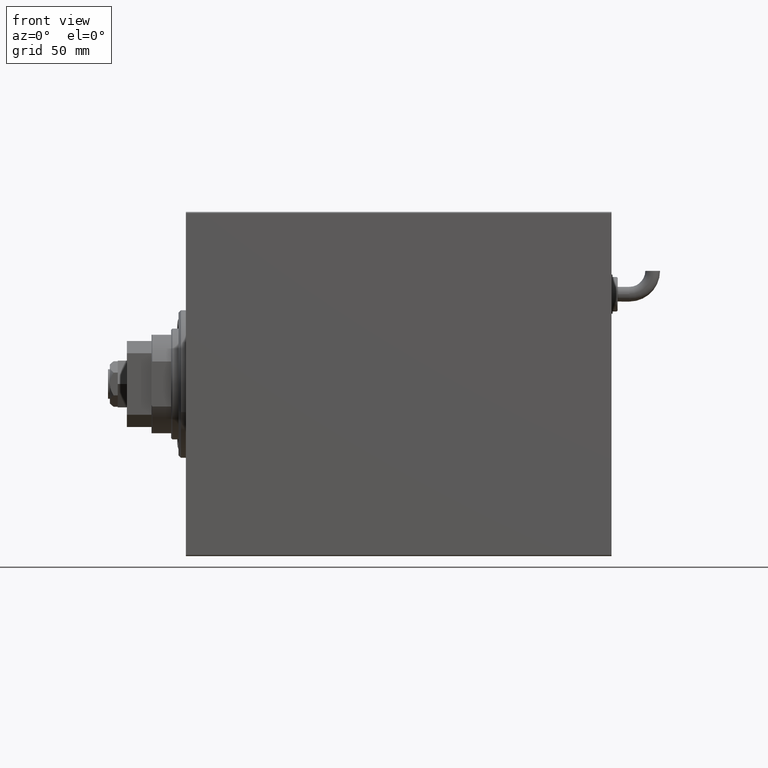
[diagram: clean part render]
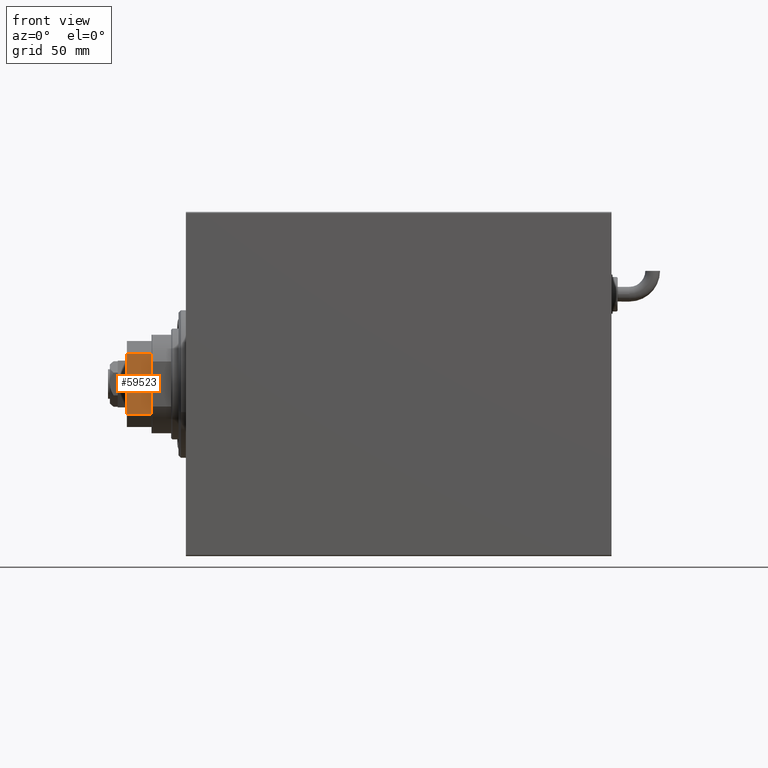
[diagram: same view with one face highlighted and labeled with its STEP entity id]
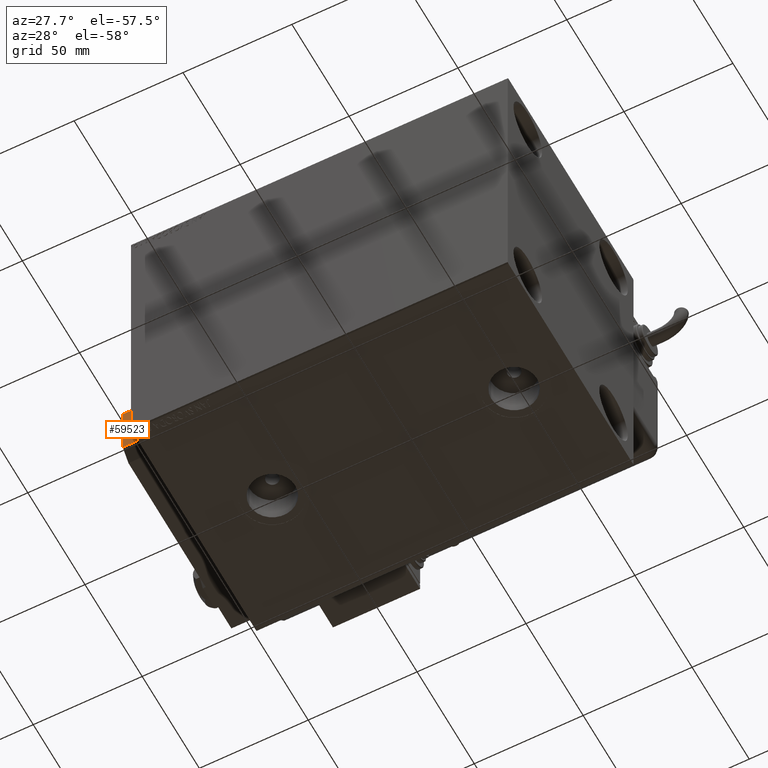
[diagram: same view with one face highlighted and labeled with its STEP entity id]
A machine part, front view. The second image highlights one B-rep face of the part: STEP entity #59523.
A second angle (auxiliary view) of the same face is appended — the face is thin or edge-on in the first view.
In plain terms, the highlighted planar face has unit normal (0, 1, 0).
Its self-contained STEP definition (entity closure, byte-faithful):
#577 = EDGE_CURVE ( 'NONE', #17290, #55496, #48969, .T. ) ;
#1047 = EDGE_CURVE ( 'NONE', #16594, #34367, #23409, .T. ) ;
#8078 = VECTOR ( 'NONE', #47781, 1000.000000000000000 ) ;
#11742 = CARTESIAN_POINT ( 'NONE',  ( -12.50000000000000711, 9.629649721936179265E-32, 10.00000000000000000 ) ) ;
#15949 = ORIENTED_EDGE ( 'NONE', *, *, #577, .F. ) ;
#16594 = VERTEX_POINT ( 'NONE', #38016 ) ;
#16902 = EDGE_CURVE ( 'NONE', #17290, #16594, #33528, .T. ) ;
#17290 = VERTEX_POINT ( 'NONE', #32786 ) ;
#17348 = EDGE_LOOP ( 'NONE', ( #15949, #24563, #32271, #21872 ) ) ;
#18670 = CARTESIAN_POINT ( 'NONE',  ( 12.49999999999999289, 9.629649721936179265E-32, 0.000000000000000000 ) ) ;
#19115 = FACE_OUTER_BOUND ( 'NONE', #17348, .T. ) ;
#19341 = VECTOR ( 'NONE', #51966, 1000.000000000000000 ) ;
#21872 = ORIENTED_EDGE ( 'NONE', *, *, #53204, .T. ) ;
#23351 = DIRECTION ( 'NONE',  ( 0.000000000000000000, 1.000000000000000000, 0.000000000000000000 ) ) ;
#23409 = LINE ( 'NONE', #27931, #41832 ) ;
#24563 = ORIENTED_EDGE ( 'NONE', *, *, #16902, .T. ) ;
#26904 = LINE ( 'NONE', #59249, #19341 ) ;
#27931 = CARTESIAN_POINT ( 'NONE',  ( -17.50000000000001066, 9.629649721936179265E-32, 0.000000000000000000 ) ) ;
#28483 = CARTESIAN_POINT ( 'NONE',  ( -17.50000000000001066, 9.629649721936179265E-32, 10.00000000000000000 ) ) ;
#29352 = CARTESIAN_POINT ( 'NONE',  ( -17.50000000000001066, 9.629649721936179265E-32, 10.00000000000000000 ) ) ;
#30361 = CARTESIAN_POINT ( 'NONE',  ( 12.49999999999999289, 9.629649721936179265E-32, 10.00000000000000000 ) ) ;
#32271 = ORIENTED_EDGE ( 'NONE', *, *, #1047, .T. ) ;
#32786 = CARTESIAN_POINT ( 'NONE',  ( -12.50000000000000711, 9.629649721936179265E-32, 10.00000000000000000 ) ) ;
#33528 = LINE ( 'NONE', #11742, #57884 ) ;
#34367 = VERTEX_POINT ( 'NONE', #18670 ) ;
#37530 = DIRECTION ( 'NONE',  ( 0.000000000000000000, -0.000000000000000000, 1.000000000000000000 ) ) ;
#38016 = CARTESIAN_POINT ( 'NONE',  ( -12.50000000000000711, 9.629649721936179265E-32, 0.000000000000000000 ) ) ;
#40648 = PLANE ( 'NONE',  #54156 ) ;
#41832 = VECTOR ( 'NONE', #46346, 1000.000000000000000 ) ;
#46346 = DIRECTION ( 'NONE',  ( 1.000000000000000000, 0.000000000000000000, 0.000000000000000000 ) ) ;
#47781 = DIRECTION ( 'NONE',  ( 1.000000000000000000, 0.000000000000000000, 0.000000000000000000 ) ) ;
#48969 = LINE ( 'NONE', #29352, #8078 ) ;
#51966 = DIRECTION ( 'NONE',  ( 0.000000000000000000, 0.000000000000000000, 1.000000000000000000 ) ) ;
#51984 = DIRECTION ( 'NONE',  ( 0.000000000000000000, 0.000000000000000000, -1.000000000000000000 ) ) ;
#53204 = EDGE_CURVE ( 'NONE', #34367, #55496, #26904, .T. ) ;
#54156 = AXIS2_PLACEMENT_3D ( 'NONE', #28483, #23351, #37530 ) ;
#55496 = VERTEX_POINT ( 'NONE', #30361 ) ;
#57884 = VECTOR ( 'NONE', #51984, 1000.000000000000000 ) ;
#59249 = CARTESIAN_POINT ( 'NONE',  ( 12.49999999999999289, 9.629649721936179265E-32, 10.00000000000000000 ) ) ;
#59523 = ADVANCED_FACE ( 'NONE', ( #19115 ), #40648, .F. ) ;